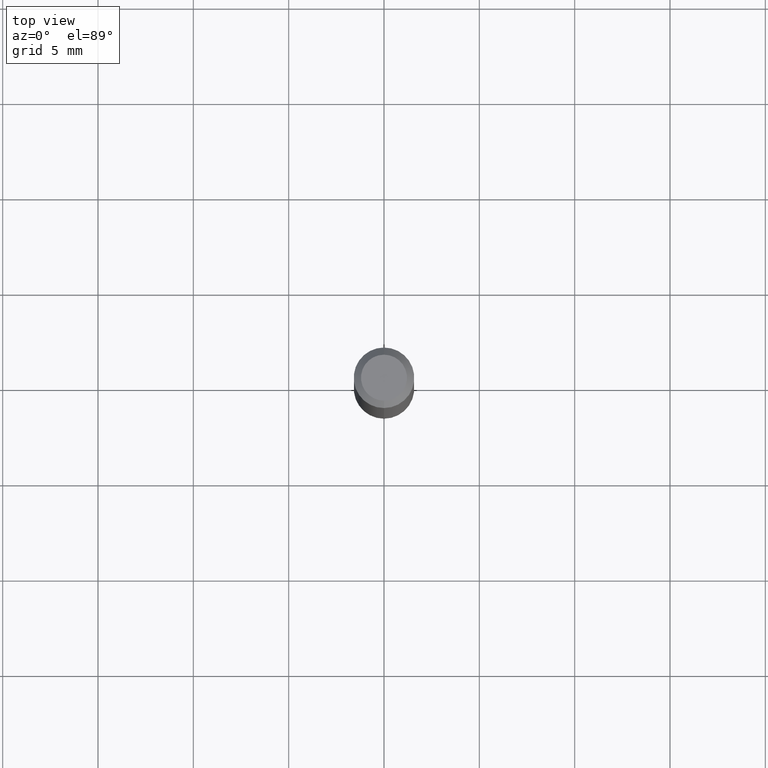
[diagram: clean part render]
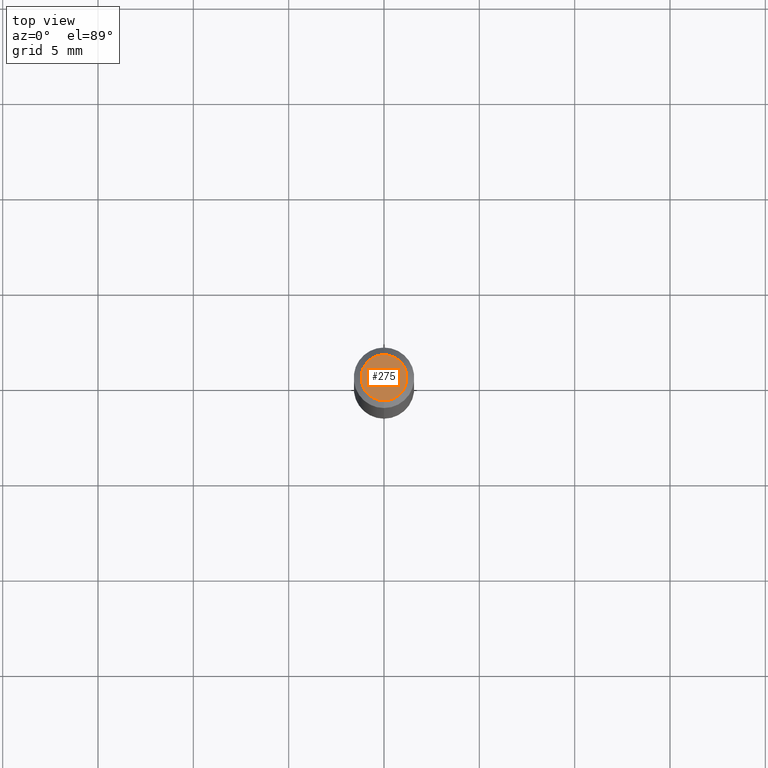
[diagram: same view with one face highlighted and labeled with its STEP entity id]
A machine part, top view. The second image highlights one B-rep face of the part: STEP entity #275.
In plain terms, the highlighted planar face has unit normal (0, -0, -1).
Its self-contained STEP definition (entity closure, byte-faithful):
#62 = ORIENTED_EDGE ( 'NONE', *, *, #419, .T. ) ;
#66 = AXIS2_PLACEMENT_3D ( 'NONE', #172, #397, #276 ) ;
#111 = DIRECTION ( 'NONE',  ( 6.982962677686265922E-15, 1.000000000000000000, -3.491502941661058160E-15 ) ) ;
#114 = FACE_OUTER_BOUND ( 'NONE', #473, .T. ) ;
#153 = CIRCLE ( 'NONE', #474, 0.04749999999999999362 ) ;
#172 = CARTESIAN_POINT ( 'NONE',  ( 2.166499215240843409E-46, -3.093224916957672110E-32, -8.859293457980281968E-18 ) ) ;
#174 = EDGE_CURVE ( 'NONE', #260, #338, #153, .T. ) ;
#260 = VERTEX_POINT ( 'NONE', #506 ) ;
#267 = CARTESIAN_POINT ( 'NONE',  ( 2.166499215240843409E-46, -3.093224916957672110E-32, -8.859293457980281968E-18 ) ) ;
#273 = CARTESIAN_POINT ( 'NONE',  ( 3.316907271900976096E-16, 0.04749999999999999362, -1.702760364578903403E-16 ) ) ;
#275 = ADVANCED_FACE ( 'NONE', ( #114 ), #383, .F. ) ;
#276 = DIRECTION ( 'NONE',  ( -6.982962677686266711E-15, -1.000000000000000000, 3.491502941661058160E-15 ) ) ;
#287 = CARTESIAN_POINT ( 'NONE',  ( 3.840629472727447874E-16, 0.04749999999999999362, -1.747056831868805136E-16 ) ) ;
#304 = DIRECTION ( 'NONE',  ( 2.445453721018014708E-29, -3.491502941661058160E-15, -1.000000000000000000 ) ) ;
#309 = CIRCLE ( 'NONE', #66, 0.04749999999999999362 ) ;
#311 = DIRECTION ( 'NONE',  ( -6.982962677686266711E-15, -1.000000000000000000, 3.491502941661058160E-15 ) ) ;
#320 = ORIENTED_EDGE ( 'NONE', *, *, #174, .T. ) ;
#328 = AXIS2_PLACEMENT_3D ( 'NONE', #273, #304, #111 ) ;
#338 = VERTEX_POINT ( 'NONE', #287 ) ;
#383 = PLANE ( 'NONE',  #328 ) ;
#385 = DIRECTION ( 'NONE',  ( -2.445453721018015268E-29, 3.491502941661057766E-15, 1.000000000000000000 ) ) ;
#397 = DIRECTION ( 'NONE',  ( -2.445453721018015268E-29, 3.491502941661057766E-15, 1.000000000000000000 ) ) ;
#419 = EDGE_CURVE ( 'NONE', #338, #260, #309, .T. ) ;
#473 = EDGE_LOOP ( 'NONE', ( #62, #320 ) ) ;
#474 = AXIS2_PLACEMENT_3D ( 'NONE', #267, #385, #311 ) ;
#506 = CARTESIAN_POINT ( 'NONE',  ( -3.773273898774340269E-16, -0.04749999999999999362, 1.569870962709199435E-16 ) ) ;